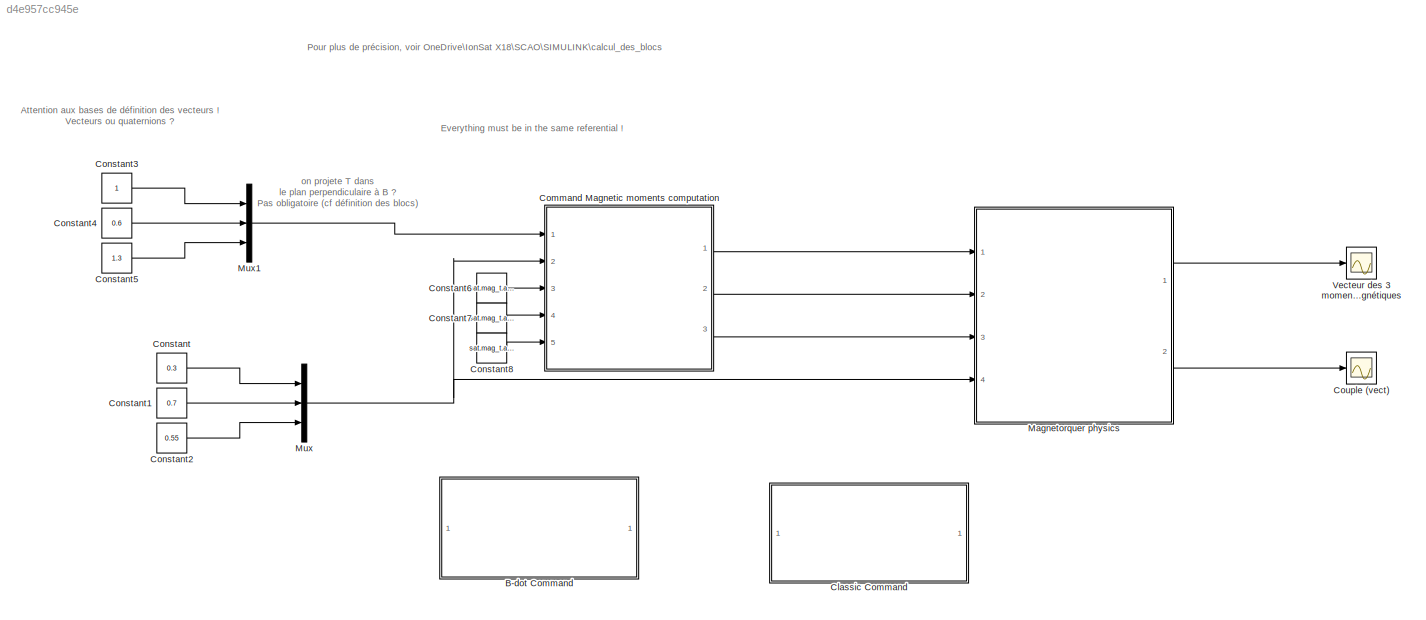
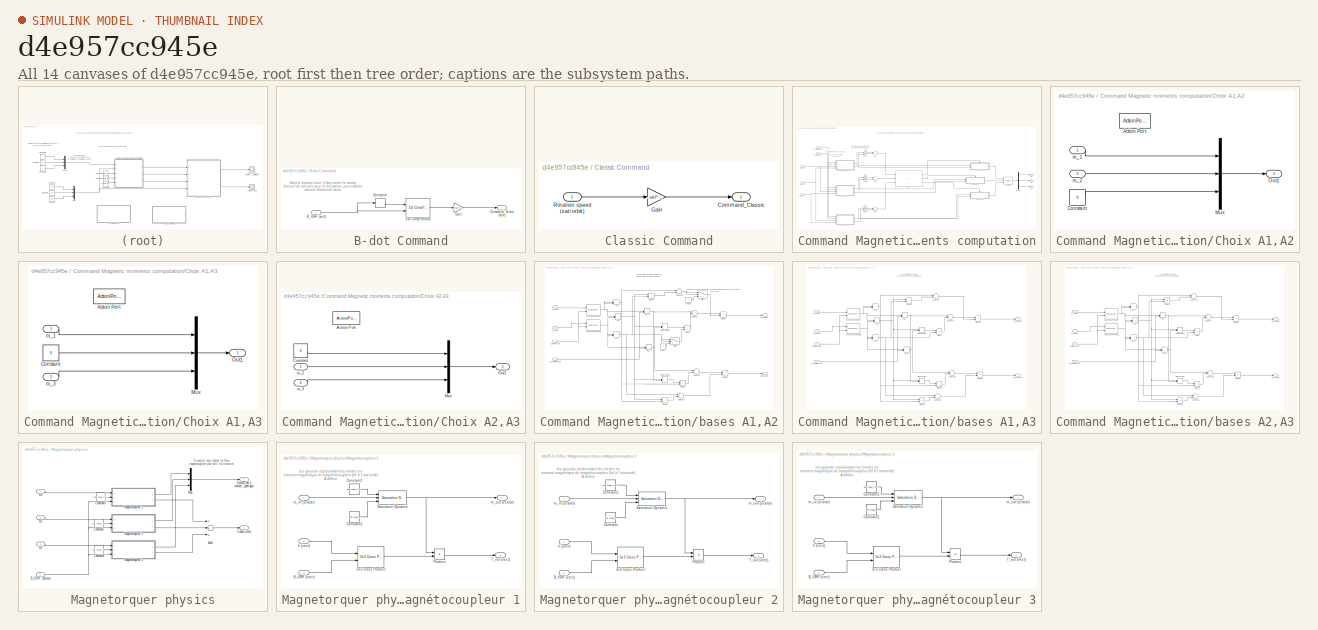
[diagram: thumbnail index - all 14 canvases of the model, root first then tree order]
MODEL slx_d4e957cc945e
KIND model
CONFIG AbsTol = auto
CONFIG EnableMultiTasking = off
CONFIG FixedStep = auto
CONFIG MaxStep = auto
CONFIG MinStep = auto
CONFIG RelTol = 1e-3
CONFIG SampleTimeConstraint = Unconstrained
CONFIG Solver = ode5
CONFIG SolverName = ode5
CONFIG StartTime = 0.0
CONFIG StopTime = 10.0
BLOCK [SubSystem] B-dot Command
  Ports = [1, 1]
  RequestExecContextInheritance = off
BLOCK [Reference] B-dot Command/3x3 Cross Product  REF=sharedutil/3x3 Cross Product
  Ports = [2, 1]
  SourceBlock = sharedutil/3x3 Cross Product
  SourceProductBaseCode = AE
  SourceProductName = Aerospace Blockset
  SourceType = CrossProduct
BLOCK [Inport] B-dot Command/B_IGRF (vect)
  IconDisplay = Port number
BLOCK [Outport] B-dot Command/Command_B-dot (vect)
  IconDisplay = Port number
BLOCK [Derivative] B-dot Command/Derivative
BLOCK [Gain] B-dot Command/Gain
  Gain = - sat.PID.k_mag_bdot
  OutDataTypeStr = Inherit: Inherit via internal rule
  ParamDataTypeStr = Inherit: Inherit via internal rule
  SaturateOnIntegerOverflow = off
BLOCK [SubSystem] Classic Command
  Ports = [1, 1]
  RequestExecContextInheritance = off
BLOCK [Outport] Classic Command/Command_Classic
  IconDisplay = Port number
BLOCK [Gain] Classic Command/Gain
  Gain = - sat.PID.k_mag_classic
  OutDataTypeStr = Inherit: Inherit via internal rule
  ParamDataTypeStr = Inherit: Inherit via internal rule
  SaturateOnIntegerOverflow = off
BLOCK [Inport] Classic Command/Rotation speed (sat//orbit)
  IconDisplay = Port number
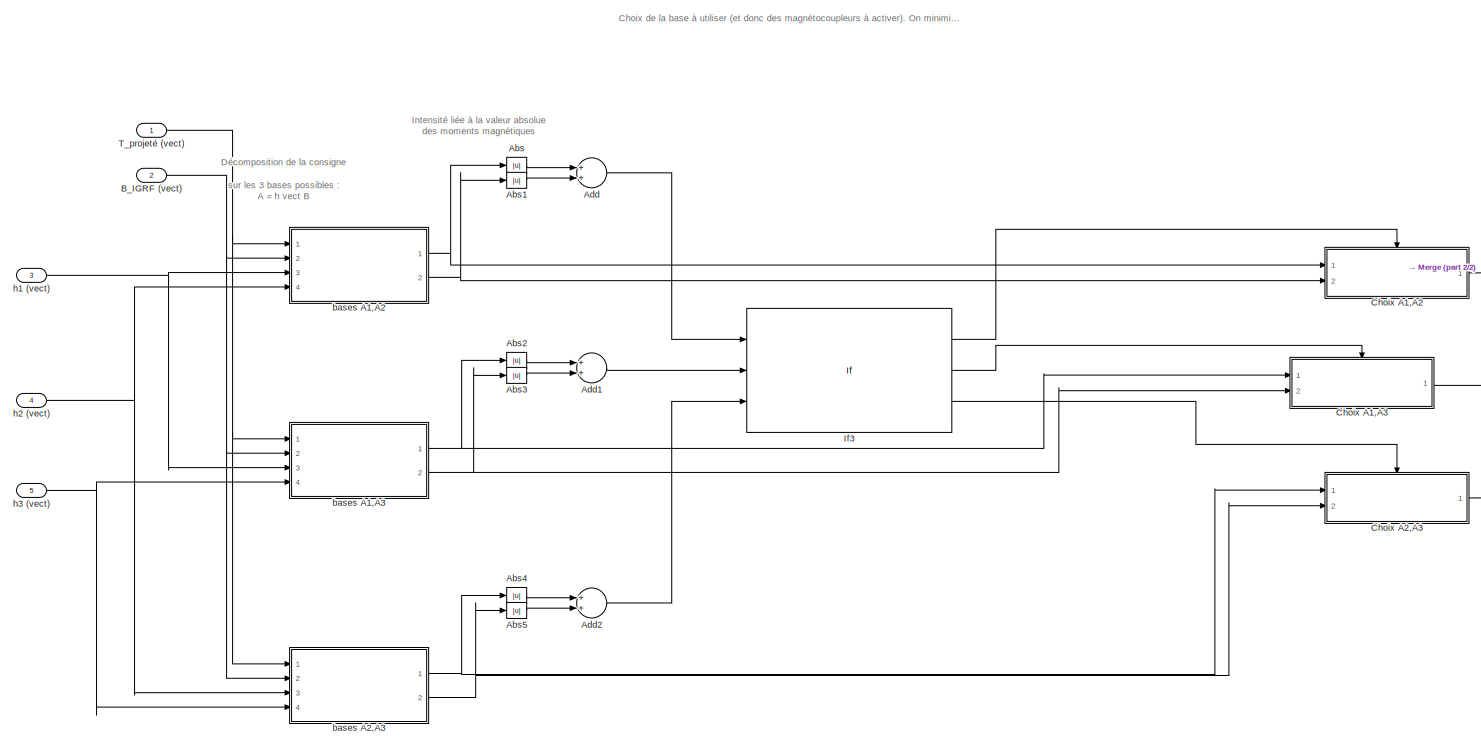
[diagram: Command Magnetic moments computation - part 1/2, most of the canvas]
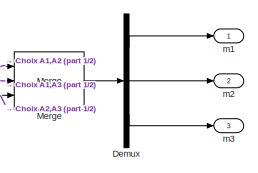
[diagram: Command Magnetic moments computation - part 2/2, middle right region]
BLOCK [SubSystem] Command Magnetic moments computation
  Ports = [5, 3]
  RequestExecContextInheritance = off
BLOCK [Abs] Command Magnetic moments computation/Abs
  SaturateOnIntegerOverflow = off
BLOCK [Abs] Command Magnetic moments computation/Abs1
  SaturateOnIntegerOverflow = off
BLOCK [Abs] Command Magnetic moments computation/Abs2
  SaturateOnIntegerOverflow = off
BLOCK [Abs] Command Magnetic moments computation/Abs3
  SaturateOnIntegerOverflow = off
BLOCK [Abs] Command Magnetic moments computation/Abs4
  SaturateOnIntegerOverflow = off
BLOCK [Abs] Command Magnetic moments computation/Abs5
  SaturateOnIntegerOverflow = off
BLOCK [Sum] Command Magnetic moments computation/Add
  InputSameDT = off
  OutDataTypeStr = Inherit: Inherit via internal rule
  Ports = [2, 1]
  SaturateOnIntegerOverflow = off
BLOCK [Sum] Command Magnetic moments computation/Add1
  InputSameDT = off
  OutDataTypeStr = Inherit: Inherit via internal rule
  Ports = [2, 1]
  SaturateOnIntegerOverflow = off
BLOCK [Sum] Command Magnetic moments computation/Add2
  InputSameDT = off
  OutDataTypeStr = Inherit: Inherit via internal rule
  Ports = [2, 1]
  SaturateOnIntegerOverflow = off
BLOCK [Inport] Command Magnetic moments computation/B_IGRF (vect)
  IconDisplay = Port number
  Port = 2
BLOCK [SubSystem] Command Magnetic moments computation/Choix A1,A2
  Ports = [2, 1, 0, 0, 0, 0, 0, 1]
  RequestExecContextInheritance = off
  TreatAsAtomicUnit = on
BLOCK [ActionPort] Command Magnetic moments computation/Choix A1,A2/Action Port
  ActionPortLabel = if(u1 <= u2 & u1 <= u3)
BLOCK [Constant] Command Magnetic moments computation/Choix A1,A2/Constant
  Value = 0
BLOCK [Mux] Command Magnetic moments computation/Choix A1,A2/Mux
  DisplayOption = bar
  Inputs = 3
  Ports = [3, 1]
BLOCK [Outport] Command Magnetic moments computation/Choix A1,A2/Out1
  IconDisplay = Port number
BLOCK [Inport] Command Magnetic moments computation/Choix A1,A2/m_1
  IconDisplay = Port number
BLOCK [Inport] Command Magnetic moments computation/Choix A1,A2/m_2
  IconDisplay = Port number
  Port = 2
BLOCK [SubSystem] Command Magnetic moments computation/Choix A1,A3
  Ports = [2, 1, 0, 0, 0, 0, 0, 1]
  RequestExecContextInheritance = off
  TreatAsAtomicUnit = on
BLOCK [ActionPort] Command Magnetic moments computation/Choix A1,A3/Action Port
  ActionPortLabel = elseif(u2 < u1 & u2 <= u3)
BLOCK [Constant] Command Magnetic moments computation/Choix A1,A3/Constant
  Value = 0
BLOCK [Mux] Command Magnetic moments computation/Choix A1,A3/Mux
  DisplayOption = bar
  Inputs = 3
  Ports = [3, 1]
BLOCK [Outport] Command Magnetic moments computation/Choix A1,A3/Out1
  IconDisplay = Port number
BLOCK [Inport] Command Magnetic moments computation/Choix A1,A3/m_1
  IconDisplay = Port number
BLOCK [Inport] Command Magnetic moments computation/Choix A1,A3/m_3
  IconDisplay = Port number
  Port = 2
BLOCK [SubSystem] Command Magnetic moments computation/Choix A2,A3
  Ports = [2, 1, 0, 0, 0, 0, 0, 1]
  RequestExecContextInheritance = off
  TreatAsAtomicUnit = on
BLOCK [ActionPort] Command Magnetic moments computation/Choix A2,A3/Action Port
  ActionPortLabel = else
BLOCK [Constant] Command Magnetic moments computation/Choix A2,A3/Constant
  Value = 0
BLOCK [Mux] Command Magnetic moments computation/Choix A2,A3/Mux
  DisplayOption = bar
  Inputs = 3
  Ports = [3, 1]
BLOCK [Outport] Command Magnetic moments computation/Choix A2,A3/Out1
  IconDisplay = Port number
BLOCK [Inport] Command Magnetic moments computation/Choix A2,A3/m_2
  IconDisplay = Port number
BLOCK [Inport] Command Magnetic moments computation/Choix A2,A3/m_3
  IconDisplay = Port number
  Port = 2
BLOCK [Demux] Command Magnetic moments computation/Demux
  DisplayOption = bar
  Outputs = 3
  Ports = [1, 3]
BLOCK [If] Command Magnetic moments computation/If3
  ElseIfExpressions = u2 < u1 & u2 <= u3
  IfExpression = u1 <= u2 & u1 <= u3
  NumInputs = 3
  Ports = [3, 3]
BLOCK [Merge] Command Magnetic moments computation/Merge
  Inputs = 3
  Ports = [3, 1]
BLOCK [Inport] Command Magnetic moments computation/T_projeté (vect)
  IconDisplay = Port number
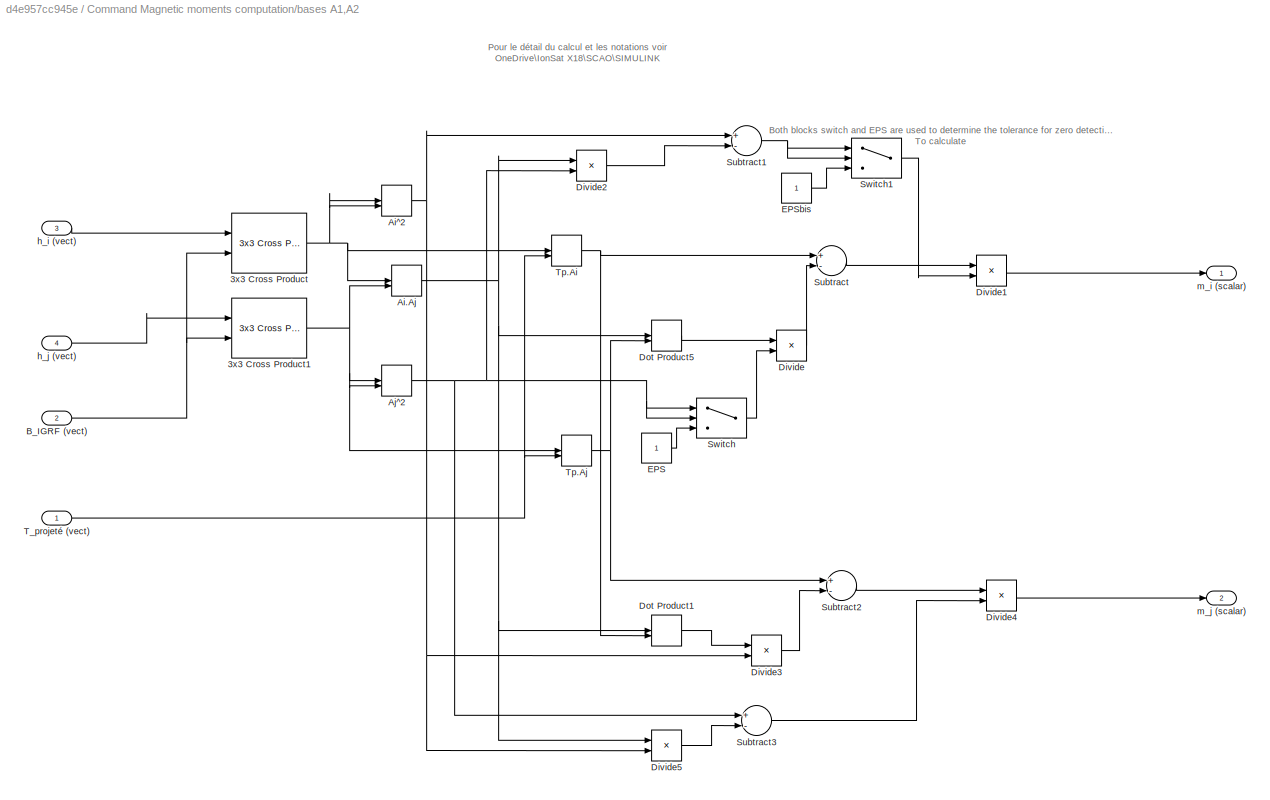
BLOCK [SubSystem] Command Magnetic moments computation/bases A1,A2
  Ports = [4, 2]
  RequestExecContextInheritance = off
BLOCK [Reference] Command Magnetic moments computation/bases A1,A2/3x3 Cross Product  REF=sharedutil/3x3 Cross Product
  Ports = [2, 1]
  SourceBlock = sharedutil/3x3 Cross Product
  SourceProductBaseCode = AE
  SourceProductName = Aerospace Blockset
  SourceType = CrossProduct
BLOCK [Reference] Command Magnetic moments computation/bases A1,A2/3x3 Cross Product1  REF=sharedutil/3x3 Cross Product
  Ports = [2, 1]
  SourceBlock = sharedutil/3x3 Cross Product
  SourceProductBaseCode = AE
  SourceProductName = Aerospace Blockset
  SourceType = CrossProduct
BLOCK [DotProduct] Command Magnetic moments computation/bases A1,A2/Ai.Aj
  OutDataTypeStr = Inherit: Inherit via internal rule
BLOCK [DotProduct] Command Magnetic moments computation/bases A1,A2/Ai^2
  OutDataTypeStr = Inherit: Inherit via internal rule
BLOCK [DotProduct] Command Magnetic moments computation/bases A1,A2/Aj^2
  OutDataTypeStr = Inherit: Inherit via internal rule
BLOCK [Inport] Command Magnetic moments computation/bases A1,A2/B_IGRF (vect)
  IconDisplay = Port number
  Port = 2
BLOCK [Product] Command Magnetic moments computation/bases A1,A2/Divide
  InputSameDT = off
  Inputs = */
  OutDataTypeStr = Inherit: Inherit via internal rule
  Ports = [2, 1]
  RndMeth = Floor
  SaturateOnIntegerOverflow = off
BLOCK [Product] Command Magnetic moments computation/bases A1,A2/Divide1
  InputSameDT = off
  Inputs = */
  OutDataTypeStr = Inherit: Inherit via internal rule
  Ports = [2, 1]
  RndMeth = Floor
  SaturateOnIntegerOverflow = off
BLOCK [Product] Command Magnetic moments computation/bases A1,A2/Divide2
  InputSameDT = off
  Inputs = */
  OutDataTypeStr = Inherit: Inherit via internal rule
  Ports = [2, 1]
  RndMeth = Floor
  SaturateOnIntegerOverflow = off
BLOCK [Product] Command Magnetic moments computation/bases A1,A2/Divide3
  InputSameDT = off
  Inputs = */
  OutDataTypeStr = Inherit: Inherit via internal rule
  Ports = [2, 1]
  RndMeth = Floor
  SaturateOnIntegerOverflow = off
BLOCK [Product] Command Magnetic moments computation/bases A1,A2/Divide4
  InputSameDT = off
  Inputs = */
  OutDataTypeStr = Inherit: Inherit via internal rule
  Ports = [2, 1]
  RndMeth = Floor
  SaturateOnIntegerOverflow = off
BLOCK [Product] Command Magnetic moments computation/bases A1,A2/Divide5
  InputSameDT = off
  Inputs = */
  OutDataTypeStr = Inherit: Inherit via internal rule
  Ports = [2, 1]
  RndMeth = Floor
  SaturateOnIntegerOverflow = off
BLOCK [DotProduct] Command Magnetic moments computation/bases A1,A2/Dot Product1
  OutDataTypeStr = Inherit: Inherit via internal rule
BLOCK [DotProduct] Command Magnetic moments computation/bases A1,A2/Dot Product5
  OutDataTypeStr = Inherit: Inherit via internal rule
BLOCK [Constant] Command Magnetic moments computation/bases A1,A2/EPS
BLOCK [Constant] Command Magnetic moments computation/bases A1,A2/EPSbis
BLOCK [Sum] Command Magnetic moments computation/bases A1,A2/Subtract
  InputSameDT = off
  Inputs = +-
  OutDataTypeStr = Inherit: Inherit via internal rule
  Ports = [2, 1]
  SaturateOnIntegerOverflow = off
BLOCK [Sum] Command Magnetic moments computation/bases A1,A2/Subtract1
  InputSameDT = off
  Inputs = +-
  OutDataTypeStr = Inherit: Inherit via internal rule
  Ports = [2, 1]
  SaturateOnIntegerOverflow = off
BLOCK [Sum] Command Magnetic moments computation/bases A1,A2/Subtract2
  InputSameDT = off
  Inputs = +-
  OutDataTypeStr = Inherit: Inherit via internal rule
  Ports = [2, 1]
  SaturateOnIntegerOverflow = off
BLOCK [Sum] Command Magnetic moments computation/bases A1,A2/Subtract3
  InputSameDT = off
  Inputs = +-
  OutDataTypeStr = Inherit: Inherit via internal rule
  Ports = [2, 1]
  SaturateOnIntegerOverflow = off
BLOCK [Switch] Command Magnetic moments computation/bases A1,A2/Switch
  Criteria = u2 ~= 0
  InputSameDT = off
  SaturateOnIntegerOverflow = off
BLOCK [Switch] Command Magnetic moments computation/bases A1,A2/Switch1
  Criteria = u2 ~= 0
  InputSameDT = off
  SaturateOnIntegerOverflow = off
BLOCK [Inport] Command Magnetic moments computation/bases A1,A2/T_projeté (vect)
  IconDisplay = Port number
BLOCK [DotProduct] Command Magnetic moments computation/bases A1,A2/Tp.Ai
  OutDataTypeStr = Inherit: Inherit via internal rule
BLOCK [DotProduct] Command Magnetic moments computation/bases A1,A2/Tp.Aj
  OutDataTypeStr = Inherit: Inherit via internal rule
BLOCK [Inport] Command Magnetic moments computation/bases A1,A2/h_i (vect)
  IconDisplay = Port number
  Port = 3
BLOCK [Inport] Command Magnetic moments computation/bases A1,A2/h_j (vect)
  IconDisplay = Port number
  Port = 4
BLOCK [Outport] Command Magnetic moments computation/bases A1,A2/m_i (scalar)
  IconDisplay = Port number
BLOCK [Outport] Command Magnetic moments computation/bases A1,A2/m_j (scalar)
  IconDisplay = Port number
  Port = 2
BLOCK [SubSystem] Command Magnetic moments computation/bases A1,A3
  Ports = [4, 2]
  RequestExecContextInheritance = off
BLOCK [Reference] Command Magnetic moments computation/bases A1,A3/3x3 Cross Product  REF=sharedutil/3x3 Cross Product
  Ports = [2, 1]
  SourceBlock = sharedutil/3x3 Cross Product
  SourceProductBaseCode = AE
  SourceProductName = Aerospace Blockset
  SourceType = CrossProduct
BLOCK [Reference] Command Magnetic moments computation/bases A1,A3/3x3 Cross Product1  REF=sharedutil/3x3 Cross Product
  Ports = [2, 1]
  SourceBlock = sharedutil/3x3 Cross Product
  SourceProductBaseCode = AE
  SourceProductName = Aerospace Blockset
  SourceType = CrossProduct
BLOCK [DotProduct] Command Magnetic moments computation/bases A1,A3/Ai.Aj
  OutDataTypeStr = Inherit: Inherit via internal rule
BLOCK [DotProduct] Command Magnetic moments computation/bases A1,A3/Ai^2
  OutDataTypeStr = Inherit: Inherit via internal rule
BLOCK [DotProduct] Command Magnetic moments computation/bases A1,A3/Aj^2
  OutDataTypeStr = Inherit: Inherit via internal rule
BLOCK [Inport] Command Magnetic moments computation/bases A1,A3/B_IGRF (vect)
  IconDisplay = Port number
  Port = 2
BLOCK [Product] Command Magnetic moments computation/bases A1,A3/Divide
  InputSameDT = off
  Inputs = */
  OutDataTypeStr = Inherit: Inherit via internal rule
  Ports = [2, 1]
  RndMeth = Floor
  SaturateOnIntegerOverflow = off
BLOCK [Product] Command Magnetic moments computation/bases A1,A3/Divide1
  InputSameDT = off
  Inputs = */
  OutDataTypeStr = Inherit: Inherit via internal rule
  Ports = [2, 1]
  RndMeth = Floor
  SaturateOnIntegerOverflow = off
BLOCK [Product] Command Magnetic moments computation/bases A1,A3/Divide2
  InputSameDT = off
  Inputs = */
  OutDataTypeStr = Inherit: Inherit via internal rule
  Ports = [2, 1]
  RndMeth = Floor
  SaturateOnIntegerOverflow = off
BLOCK [Product] Command Magnetic moments computation/bases A1,A3/Divide3
  InputSameDT = off
  Inputs = */
  OutDataTypeStr = Inherit: Inherit via internal rule
  Ports = [2, 1]
  RndMeth = Floor
  SaturateOnIntegerOverflow = off
BLOCK [Product] Command Magnetic moments computation/bases A1,A3/Divide4
  InputSameDT = off
  Inputs = */
  OutDataTypeStr = Inherit: Inherit via internal rule
  Ports = [2, 1]
  RndMeth = Floor
  SaturateOnIntegerOverflow = off
BLOCK [Product] Command Magnetic moments computation/bases A1,A3/Divide5
  InputSameDT = off
  Inputs = */
  OutDataTypeStr = Inherit: Inherit via internal rule
  Ports = [2, 1]
  RndMeth = Floor
  SaturateOnIntegerOverflow = off
BLOCK [DotProduct] Command Magnetic moments computation/bases A1,A3/Dot Product1
  OutDataTypeStr = Inherit: Inherit via internal rule
BLOCK [DotProduct] Command Magnetic moments computation/bases A1,A3/Dot Product5
  OutDataTypeStr = Inherit: Inherit via internal rule
BLOCK [Sum] Command Magnetic moments computation/bases A1,A3/Subtract
  InputSameDT = off
  Inputs = +-
  OutDataTypeStr = Inherit: Inherit via internal rule
  Ports = [2, 1]
  SaturateOnIntegerOverflow = off
BLOCK [Sum] Command Magnetic moments computation/bases A1,A3/Subtract1
  InputSameDT = off
  Inputs = +-
  OutDataTypeStr = Inherit: Inherit via internal rule
  Ports = [2, 1]
  SaturateOnIntegerOverflow = off
BLOCK [Sum] Command Magnetic moments computation/bases A1,A3/Subtract2
  InputSameDT = off
  Inputs = +-
  OutDataTypeStr = Inherit: Inherit via internal rule
  Ports = [2, 1]
  SaturateOnIntegerOverflow = off
BLOCK [Sum] Command Magnetic moments computation/bases A1,A3/Subtract3
  InputSameDT = off
  Inputs = +-
  OutDataTypeStr = Inherit: Inherit via internal rule
  Ports = [2, 1]
  SaturateOnIntegerOverflow = off
BLOCK [Inport] Command Magnetic moments computation/bases A1,A3/T_projeté (vect)
  IconDisplay = Port number
BLOCK [DotProduct] Command Magnetic moments computation/bases A1,A3/Tp.Ai
  OutDataTypeStr = Inherit: Inherit via internal rule
BLOCK [DotProduct] Command Magnetic moments computation/bases A1,A3/Tp.Aj
  OutDataTypeStr = Inherit: Inherit via internal rule
BLOCK [Inport] Command Magnetic moments computation/bases A1,A3/h_i (vect)
  IconDisplay = Port number
  Port = 3
BLOCK [Inport] Command Magnetic moments computation/bases A1,A3/h_j (vect)
  IconDisplay = Port number
  Port = 4
BLOCK [Outport] Command Magnetic moments computation/bases A1,A3/m_i (scalar)
  IconDisplay = Port number
BLOCK [Outport] Command Magnetic moments computation/bases A1,A3/m_j (scalar)
  IconDisplay = Port number
  Port = 2
BLOCK [SubSystem] Command Magnetic moments computation/bases A2,A3
  Ports = [4, 2]
  RequestExecContextInheritance = off
BLOCK [Reference] Command Magnetic moments computation/bases A2,A3/3x3 Cross Product  REF=sharedutil/3x3 Cross Product
  Ports = [2, 1]
  SourceBlock = sharedutil/3x3 Cross Product
  SourceProductBaseCode = AE
  SourceProductName = Aerospace Blockset
  SourceType = CrossProduct
BLOCK [Reference] Command Magnetic moments computation/bases A2,A3/3x3 Cross Product1  REF=sharedutil/3x3 Cross Product
  Ports = [2, 1]
  SourceBlock = sharedutil/3x3 Cross Product
  SourceProductBaseCode = AE
  SourceProductName = Aerospace Blockset
  SourceType = CrossProduct
BLOCK [DotProduct] Command Magnetic moments computation/bases A2,A3/Ai.Aj
  OutDataTypeStr = Inherit: Inherit via internal rule
BLOCK [DotProduct] Command Magnetic moments computation/bases A2,A3/Ai^2
  OutDataTypeStr = Inherit: Inherit via internal rule
BLOCK [DotProduct] Command Magnetic moments computation/bases A2,A3/Aj^2
  OutDataTypeStr = Inherit: Inherit via internal rule
BLOCK [Inport] Command Magnetic moments computation/bases A2,A3/B_IGRF (vect)
  IconDisplay = Port number
  Port = 2
BLOCK [Product] Command Magnetic moments computation/bases A2,A3/Divide
  InputSameDT = off
  Inputs = */
  OutDataTypeStr = Inherit: Inherit via internal rule
  Ports = [2, 1]
  RndMeth = Floor
  SaturateOnIntegerOverflow = off
BLOCK [Product] Command Magnetic moments computation/bases A2,A3/Divide1
  InputSameDT = off
  Inputs = */
  OutDataTypeStr = Inherit: Inherit via internal rule
  Ports = [2, 1]
  RndMeth = Floor
  SaturateOnIntegerOverflow = off
BLOCK [Product] Command Magnetic moments computation/bases A2,A3/Divide2
  InputSameDT = off
  Inputs = */
  OutDataTypeStr = Inherit: Inherit via internal rule
  Ports = [2, 1]
  RndMeth = Floor
  SaturateOnIntegerOverflow = off
BLOCK [Product] Command Magnetic moments computation/bases A2,A3/Divide3
  InputSameDT = off
  Inputs = */
  OutDataTypeStr = Inherit: Inherit via internal rule
  Ports = [2, 1]
  RndMeth = Floor
  SaturateOnIntegerOverflow = off
BLOCK [Product] Command Magnetic moments computation/bases A2,A3/Divide4
  InputSameDT = off
  Inputs = */
  OutDataTypeStr = Inherit: Inherit via internal rule
  Ports = [2, 1]
  RndMeth = Floor
  SaturateOnIntegerOverflow = off
BLOCK [Product] Command Magnetic moments computation/bases A2,A3/Divide5
  InputSameDT = off
  Inputs = */
  OutDataTypeStr = Inherit: Inherit via internal rule
  Ports = [2, 1]
  RndMeth = Floor
  SaturateOnIntegerOverflow = off
BLOCK [DotProduct] Command Magnetic moments computation/bases A2,A3/Dot Product1
  OutDataTypeStr = Inherit: Inherit via internal rule
BLOCK [DotProduct] Command Magnetic moments computation/bases A2,A3/Dot Product5
  OutDataTypeStr = Inherit: Inherit via internal rule
BLOCK [Sum] Command Magnetic moments computation/bases A2,A3/Subtract
  InputSameDT = off
  Inputs = +-
  OutDataTypeStr = Inherit: Inherit via internal rule
  Ports = [2, 1]
  SaturateOnIntegerOverflow = off
BLOCK [Sum] Command Magnetic moments computation/bases A2,A3/Subtract1
  InputSameDT = off
  Inputs = +-
  OutDataTypeStr = Inherit: Inherit via internal rule
  Ports = [2, 1]
  SaturateOnIntegerOverflow = off
BLOCK [Sum] Command Magnetic moments computation/bases A2,A3/Subtract2
  InputSameDT = off
  Inputs = +-
  OutDataTypeStr = Inherit: Inherit via internal rule
  Ports = [2, 1]
  SaturateOnIntegerOverflow = off
BLOCK [Sum] Command Magnetic moments computation/bases A2,A3/Subtract3
  InputSameDT = off
  Inputs = +-
  OutDataTypeStr = Inherit: Inherit via internal rule
  Ports = [2, 1]
  SaturateOnIntegerOverflow = off
BLOCK [Inport] Command Magnetic moments computation/bases A2,A3/T_projeté (vect)
  IconDisplay = Port number
BLOCK [DotProduct] Command Magnetic moments computation/bases A2,A3/Tp.Ai
  OutDataTypeStr = Inherit: Inherit via internal rule
BLOCK [DotProduct] Command Magnetic moments computation/bases A2,A3/Tp.Aj
  OutDataTypeStr = Inherit: Inherit via internal rule
BLOCK [Inport] Command Magnetic moments computation/bases A2,A3/h_i (vect)
  IconDisplay = Port number
  Port = 3
BLOCK [Inport] Command Magnetic moments computation/bases A2,A3/h_j (vect)
  IconDisplay = Port number
  Port = 4
BLOCK [Outport] Command Magnetic moments computation/bases A2,A3/m_i (scalar)
  IconDisplay = Port number
BLOCK [Outport] Command Magnetic moments computation/bases A2,A3/m_j (scalar)
  IconDisplay = Port number
  Port = 2
BLOCK [Inport] Command Magnetic moments computation/h1 (vect)
  IconDisplay = Port number
  Port = 3
BLOCK [Inport] Command Magnetic moments computation/h2 (vect)
  IconDisplay = Port number
  Port = 4
BLOCK [Inport] Command Magnetic moments computation/h3 (vect)
  IconDisplay = Port number
  Port = 5
BLOCK [Outport] Command Magnetic moments computation/m1
  IconDisplay = Port number
BLOCK [Outport] Command Magnetic moments computation/m2
  IconDisplay = Port number
  Port = 2
BLOCK [Outport] Command Magnetic moments computation/m3
  IconDisplay = Port number
  Port = 3
BLOCK [Constant] Constant
  Value = 0.3
BLOCK [Constant] Constant1
  Value = 0.7
BLOCK [Constant] Constant2
  Value = 0.55
BLOCK [Constant] Constant3
BLOCK [Constant] Constant4
  Value = 0.6
BLOCK [Constant] Constant5
  Value = 1.3
BLOCK [Constant] Constant6
  Value = sat.mag_t.axe1
BLOCK [Constant] Constant7
  Value = sat.mag_t.axe2
BLOCK [Constant] Constant8
  Value = sat.mag_t.axe3
BLOCK [Scope] Couple (vect)
  Floating = off
  NumInputPorts = 1
  Ports = [1]
  ScopeSpecificationString = Simulink.scopes.TimeScopeBlockCfg('CurrentConfiguration', extmgr.ConfigurationSet(extmgr.Configuration('Core','General UI',true),extmgr.Configuration('Core','Source UI',true),extmgr.Configuration('Sources','WiredSimulink',true,'DataLoggingVariableName','ScopeData1'),extmgr.Configuration('Visuals','Time Domain',true,'SerializedDisplays',{struct('MinYLimReal','-0.0868','MaxYLimReal','0.08342','YLabe...<+1460ch>
BLOCK [SubSystem] Magnetorquer physics
  Ports = [4, 2]
  RequestExecContextInheritance = off
BLOCK [Sum] Magnetorquer physics/Add
  InputSameDT = off
  Inputs = +++
  OutDataTypeStr = Inherit: Inherit via internal rule
  Ports = [3, 1]
  SaturateOnIntegerOverflow = off
BLOCK [Inport] Magnetorquer physics/B_IGRF (vecteur)
  IconDisplay = Port number
  Port = 4
BLOCK [Constant] Magnetorquer physics/Constant6
  Value = sat.mag_t.axe1
BLOCK [Constant] Magnetorquer physics/Constant7
  Value = sat.mag_t.axe2
BLOCK [Constant] Magnetorquer physics/Constant8
  Value = sat.mag_t.axe3
BLOCK [Outport] Magnetorquer physics/Couple (vect)
  IconDisplay = Port number
  Port = 2
BLOCK [SubSystem] Magnetorquer physics/Magnétocoupleur 1
  Ports = [3, 2]
  RequestExecContextInheritance = off
BLOCK [Reference] Magnetorquer physics/Magnétocoupleur 1/3x3 Cross Product  REF=sharedutil/3x3 Cross Product
  Ports = [2, 1]
  SourceBlock = sharedutil/3x3 Cross Product
  SourceProductBaseCode = AE
  SourceProductName = Aerospace Blockset
  SourceType = CrossProduct
BLOCK [Inport] Magnetorquer physics/Magnétocoupleur 1/B_IGRF (vect)
  IconDisplay = Port number
  Port = 3
BLOCK [Constant] Magnetorquer physics/Magnétocoupleur 1/Constant1
  Value = sat.mag_t.max_mm1
BLOCK [Constant] Magnetorquer physics/Magnétocoupleur 1/Constant2
  Value = - sat.mag_t.max_mm1
BLOCK [Product] Magnetorquer physics/Magnétocoupleur 1/Product
  InputSameDT = off
  OutDataTypeStr = Inherit: Inherit via internal rule
  Ports = [2, 1]
  RndMeth = Floor
  SaturateOnIntegerOverflow = off
BLOCK [Reference] Magnetorquer physics/Magnétocoupleur 1/Saturation Dynamic  REF=simulink/Discontinuities/Saturation
Dynamic
  Ports = [3, 1]
  SourceBlock = simulink/Discontinuities/Saturation\nDynamic
  SourceProductBaseCode = SL
  SourceProductName = Simulink
  SourceType = Saturation Dynamic
BLOCK [Outport] Magnetorquer physics/Magnétocoupleur 1/T_out (vect)
  IconDisplay = Port number
  Port = 2
BLOCK [Inport] Magnetorquer physics/Magnétocoupleur 1/h (vect)
  IconDisplay = Port number
  Port = 2
BLOCK [Inport] Magnetorquer physics/Magnétocoupleur 1/m_in (scalar)
  IconDisplay = Port number
BLOCK [Outport] Magnetorquer physics/Magnétocoupleur 1/m_out (scalar)
  IconDisplay = Port number
BLOCK [SubSystem] Magnetorquer physics/Magnétocoupleur 2
  Ports = [3, 2]
  RequestExecContextInheritance = off
BLOCK [Reference] Magnetorquer physics/Magnétocoupleur 2/3x3 Cross Product  REF=sharedutil/3x3 Cross Product
  Ports = [2, 1]
  SourceBlock = sharedutil/3x3 Cross Product
  SourceProductBaseCode = AE
  SourceProductName = Aerospace Blockset
  SourceType = CrossProduct
BLOCK [Inport] Magnetorquer physics/Magnétocoupleur 2/B_IGRF (vect)
  IconDisplay = Port number
  Port = 3
BLOCK [Constant] Magnetorquer physics/Magnétocoupleur 2/Constant
  Value = - sat.mag_t.max_mm2
BLOCK [Constant] Magnetorquer physics/Magnétocoupleur 2/Constant1
  Value = sat.mag_t.max_mm2
BLOCK [Product] Magnetorquer physics/Magnétocoupleur 2/Product
  InputSameDT = off
  OutDataTypeStr = Inherit: Inherit via internal rule
  Ports = [2, 1]
  RndMeth = Floor
  SaturateOnIntegerOverflow = off
BLOCK [Reference] Magnetorquer physics/Magnétocoupleur 2/Saturation Dynamic  REF=simulink/Discontinuities/Saturation
Dynamic
  Ports = [3, 1]
  SourceBlock = simulink/Discontinuities/Saturation\nDynamic
  SourceProductBaseCode = SL
  SourceProductName = Simulink
  SourceType = Saturation Dynamic
BLOCK [Outport] Magnetorquer physics/Magnétocoupleur 2/T_out (vect)
  IconDisplay = Port number
  Port = 2
BLOCK [Inport] Magnetorquer physics/Magnétocoupleur 2/h (vect)
  IconDisplay = Port number
  Port = 2
BLOCK [Inport] Magnetorquer physics/Magnétocoupleur 2/m_in (scalar)
  IconDisplay = Port number
BLOCK [Outport] Magnetorquer physics/Magnétocoupleur 2/m_out (scalar)
  IconDisplay = Port number
BLOCK [SubSystem] Magnetorquer physics/Magnétocoupleur 3
  Ports = [3, 2]
  RequestExecContextInheritance = off
BLOCK [Reference] Magnetorquer physics/Magnétocoupleur 3/3x3 Cross Product  REF=sharedutil/3x3 Cross Product
  Ports = [2, 1]
  SourceBlock = sharedutil/3x3 Cross Product
  SourceProductBaseCode = AE
  SourceProductName = Aerospace Blockset
  SourceType = CrossProduct
BLOCK [Inport] Magnetorquer physics/Magnétocoupleur 3/B_IGRF (vect)
  IconDisplay = Port number
  Port = 3
BLOCK [Constant] Magnetorquer physics/Magnétocoupleur 3/Constant1
  Value = sat.mag_t.max_mm3
BLOCK [Constant] Magnetorquer physics/Magnétocoupleur 3/Constant2
  Value = - sat.mag_t.max_mm3
BLOCK [Product] Magnetorquer physics/Magnétocoupleur 3/Product
  InputSameDT = off
  OutDataTypeStr = Inherit: Inherit via internal rule
  Ports = [2, 1]
  RndMeth = Floor
  SaturateOnIntegerOverflow = off
BLOCK [Reference] Magnetorquer physics/Magnétocoupleur 3/Saturation Dynamic  REF=simulink/Discontinuities/Saturation
Dynamic
  Ports = [3, 1]
  SourceBlock = simulink/Discontinuities/Saturation\nDynamic
  SourceProductBaseCode = SL
  SourceProductName = Simulink
  SourceType = Saturation Dynamic
BLOCK [Outport] Magnetorquer physics/Magnétocoupleur 3/T_out (vect)
  IconDisplay = Port number
  Port = 2
BLOCK [Inport] Magnetorquer physics/Magnétocoupleur 3/h (vect)
  IconDisplay = Port number
  Port = 2
BLOCK [Inport] Magnetorquer physics/Magnétocoupleur 3/m_in (scalar)
  IconDisplay = Port number
BLOCK [Outport] Magnetorquer physics/Magnétocoupleur 3/m_out (scalar)
  IconDisplay = Port number
BLOCK [Mux] Magnetorquer physics/Mux
  DisplayOption = bar
  Inputs = 3
  Ports = [3, 1]
BLOCK [Outport] Magnetorquer physics/Vecteur des 3 moments magnétiques
  IconDisplay = Port number
BLOCK [Inport] Magnetorquer physics/m1
  IconDisplay = Port number
BLOCK [Inport] Magnetorquer physics/m2
  IconDisplay = Port number
  Port = 2
BLOCK [Inport] Magnetorquer physics/m3
  IconDisplay = Port number
  Port = 3
BLOCK [Mux] Mux
  DisplayOption = bar
  Inputs = 3
  Ports = [3, 1]
BLOCK [Mux] Mux1
  DisplayOption = bar
  Inputs = 3
  Ports = [3, 1]
BLOCK [Scope] Vecteur des 3 moments magnétiques
  Floating = off
  NumInputPorts = 1
  Ports = [1]
  ScopeSpecificationString = Simulink.scopes.TimeScopeBlockCfg('CurrentConfiguration', extmgr.ConfigurationSet(extmgr.Configuration('Core','General UI',true),extmgr.Configuration('Core','Source UI',true),extmgr.Configuration('Sources','WiredSimulink',true),extmgr.Configuration('Visuals','Time Domain',true,'SerializedDisplays',{struct('MinYLimReal','-0.26167','MaxYLimReal','0.02907','YLabelReal','','MinYLimMag','0.00000','MaxY...<+1423ch>
ANNOTATION (root): Attention aux bases de définition des vecteurs ! Vecteurs ou quaternions ?
ANNOTATION (root): Everything must be in the same referential !
ANNOTATION (root): Pour plus de précision, voir OneDrive\IonSat X18\SCAO\SIMULINK\calcul_des_blocs
ANNOTATION (root): on projete T dans le plan perpendiculaire à B ? Pas obligatoire (cf définition des blocs)
ANNOTATION B-dot Command: Dans le bras du haut, il faut entrer le champ dans ref du vehicule pour la dérivation, puis remettre dans le référentiel voulu
ANNOTATION Command Magnetic moments computation: Choix de la base à utiliser (et donc des magnétocoupleurs à activer). On minimise en gros l'intensité globale.
ANNOTATION Command Magnetic moments computation: Décomposition de la consigne sur les 3 bases possibles : A = h vect B
ANNOTATION Command Magnetic moments computation: Intensité liée à la valeur absolue des moments magnétiques
ANNOTATION Command Magnetic moments computation/bases A1,A2: Pour le détail du calcul et les notations voir OneDrive\IonSat X18\SCAO\SIMULINK
ANNOTATION Command Magnetic moments computation/bases A1,A2: Both blocks switch and EPS are used to determine the tolerance for zero detection. To calculate
ANNOTATION Command Magnetic moments computation/bases A1,A3: Pour le détail du calcul voir OneDrive\IonSat X18\SCAO\SIMULINK
ANNOTATION Command Magnetic moments computation/bases A2,A3: Pour le détail du calcul voir OneDrive\IonSat X18\SCAO\SIMULINK
ANNOTATION Magnetorquer physics: On pourrait aussi changer les blocs magnétocoupleurs pour sortir les intensités
ANNOTATION Magnetorquer physics/Magnétocoupleur 1: les grounds représentant les limites en moment magnétique du magnétocoupleur (lié à l'intensité) A définir
ANNOTATION Magnetorquer physics/Magnétocoupleur 2: les grounds représentant les limites en moment magnétique du magnétocoupleur (lié à l'intensité) A définir
ANNOTATION Magnetorquer physics/Magnétocoupleur 3: les grounds représentant les limites en moment magnétique du magnétocoupleur (lié à l'intensité) A définir
LINE B-dot Command/3x3 Cross Product:1 -> B-dot Command/Gain:1
NET B-dot Command/B_IGRF (vect):1 -> B-dot Command/3x3 Cross Product:2, B-dot Command/Derivative:1
LINE B-dot Command/Derivative:1 -> B-dot Command/3x3 Cross Product:1
LINE B-dot Command/Gain:1 -> B-dot Command/Command_B-dot (vect):1
LINE Classic Command/Gain:1 -> Classic Command/Command_Classic:1
LINE Classic Command/Rotation speed (sat//orbit):1 -> Classic Command/Gain:1
LINE Command Magnetic moments computation/Abs1:1 -> Command Magnetic moments computation/Add:2
LINE Command Magnetic moments computation/Abs2:1 -> Command Magnetic moments computation/Add1:1
LINE Command Magnetic moments computation/Abs3:1 -> Command Magnetic moments computation/Add1:2
LINE Command Magnetic moments computation/Abs4:1 -> Command Magnetic moments computation/Add2:1
LINE Command Magnetic moments computation/Abs5:1 -> Command Magnetic moments computation/Add2:2
LINE Command Magnetic moments computation/Abs:1 -> Command Magnetic moments computation/Add:1
LINE Command Magnetic moments computation/Add1:1 -> Command Magnetic moments computation/If3:2
LINE Command Magnetic moments computation/Add2:1 -> Command Magnetic moments computation/If3:3
LINE Command Magnetic moments computation/Add:1 -> Command Magnetic moments computation/If3:1
NET Command Magnetic moments computation/B_IGRF (vect):1 -> Command Magnetic moments computation/bases A1,A2:2, Command Magnetic moments computation/bases A1,A3:2, Command Magnetic moments computation/bases A2,A3:2
LINE Command Magnetic moments computation/Choix A1,A2/Constant:1 -> Command Magnetic moments computation/Choix A1,A2/Mux:3
LINE Command Magnetic moments computation/Choix A1,A2/Mux:1 -> Command Magnetic moments computation/Choix A1,A2/Out1:1
LINE Command Magnetic moments computation/Choix A1,A2/m_1:1 -> Command Magnetic moments computation/Choix A1,A2/Mux:1
LINE Command Magnetic moments computation/Choix A1,A2/m_2:1 -> Command Magnetic moments computation/Choix A1,A2/Mux:2
LINE Command Magnetic moments computation/Choix A1,A2:1 -> Command Magnetic moments computation/Merge:1
LINE Command Magnetic moments computation/Choix A1,A3/Constant:1 -> Command Magnetic moments computation/Choix A1,A3/Mux:2
LINE Command Magnetic moments computation/Choix A1,A3/Mux:1 -> Command Magnetic moments computation/Choix A1,A3/Out1:1
LINE Command Magnetic moments computation/Choix A1,A3/m_1:1 -> Command Magnetic moments computation/Choix A1,A3/Mux:1
LINE Command Magnetic moments computation/Choix A1,A3/m_3:1 -> Command Magnetic moments computation/Choix A1,A3/Mux:3
LINE Command Magnetic moments computation/Choix A1,A3:1 -> Command Magnetic moments computation/Merge:2
LINE Command Magnetic moments computation/Choix A2,A3/Constant:1 -> Command Magnetic moments computation/Choix A2,A3/Mux:1
LINE Command Magnetic moments computation/Choix A2,A3/Mux:1 -> Command Magnetic moments computation/Choix A2,A3/Out1:1
LINE Command Magnetic moments computation/Choix A2,A3/m_2:1 -> Command Magnetic moments computation/Choix A2,A3/Mux:2
LINE Command Magnetic moments computation/Choix A2,A3/m_3:1 -> Command Magnetic moments computation/Choix A2,A3/Mux:3
LINE Command Magnetic moments computation/Choix A2,A3:1 -> Command Magnetic moments computation/Merge:3
LINE Command Magnetic moments computation/Demux:1 -> Command Magnetic moments computation/m1:1
LINE Command Magnetic moments computation/Demux:2 -> Command Magnetic moments computation/m2:1
LINE Command Magnetic moments computation/Demux:3 -> Command Magnetic moments computation/m3:1
LINE Command Magnetic moments computation/If3:1 -> Command Magnetic moments computation/Choix A1,A2:ifaction
LINE Command Magnetic moments computation/If3:2 -> Command Magnetic moments computation/Choix A1,A3:ifaction
LINE Command Magnetic moments computation/If3:3 -> Command Magnetic moments computation/Choix A2,A3:ifaction
LINE Command Magnetic moments computation/Merge:1 -> Command Magnetic moments computation/Demux:1
NET Command Magnetic moments computation/T_projeté (vect):1 -> Command Magnetic moments computation/bases A1,A2:1, Command Magnetic moments computation/bases A1,A3:1, Command Magnetic moments computation/bases A2,A3:1
NET Command Magnetic moments computation/bases A1,A2/3x3 Cross Product1:1 -> Command Magnetic moments computation/bases A1,A2/Ai.Aj:2, Command Magnetic moments computation/bases A1,A2/Aj^2:1, Command Magnetic moments computation/bases A1,A2/Aj^2:2, Command Magnetic moments computation/bases A1,A2/Tp.Aj:1
NET Command Magnetic moments computation/bases A1,A2/3x3 Cross Product:1 -> Command Magnetic moments computation/bases A1,A2/Ai.Aj:1, Command Magnetic moments computation/bases A1,A2/Ai^2:1, Command Magnetic moments computation/bases A1,A2/Ai^2:2, Command Magnetic moments computation/bases A1,A2/Tp.Ai:1
NET Command Magnetic moments computation/bases A1,A2/Ai.Aj:1 -> Command Magnetic moments computation/bases A1,A2/Divide2:1, Command Magnetic moments computation/bases A1,A2/Divide5:1, Command Magnetic moments computation/bases A1,A2/Dot Product1:1, Command Magnetic moments computation/bases A1,A2/Dot Product5:1
NET Command Magnetic moments computation/bases A1,A2/Ai^2:1 -> Command Magnetic moments computation/bases A1,A2/Divide3:2, Command Magnetic moments computation/bases A1,A2/Divide5:2, Command Magnetic moments computation/bases A1,A2/Subtract1:1
NET Command Magnetic moments computation/bases A1,A2/Aj^2:1 -> Command Magnetic moments computation/bases A1,A2/Divide2:2, Command Magnetic moments computation/bases A1,A2/Subtract3:1, Command Magnetic moments computation/bases A1,A2/Switch:1, Command Magnetic moments computation/bases A1,A2/Switch:2
NET Command Magnetic moments computation/bases A1,A2/B_IGRF (vect):1 -> Command Magnetic moments computation/bases A1,A2/3x3 Cross Product1:2, Command Magnetic moments computation/bases A1,A2/3x3 Cross Product:2
LINE Command Magnetic moments computation/bases A1,A2/Divide1:1 -> Command Magnetic moments computation/bases A1,A2/m_i (scalar):1
LINE Command Magnetic moments computation/bases A1,A2/Divide2:1 -> Command Magnetic moments computation/bases A1,A2/Subtract1:2
LINE Command Magnetic moments computation/bases A1,A2/Divide3:1 -> Command Magnetic moments computation/bases A1,A2/Subtract2:2
LINE Command Magnetic moments computation/bases A1,A2/Divide4:1 -> Command Magnetic moments computation/bases A1,A2/m_j (scalar):1
LINE Command Magnetic moments computation/bases A1,A2/Divide5:1 -> Command Magnetic moments computation/bases A1,A2/Subtract3:2
LINE Command Magnetic moments computation/bases A1,A2/Divide:1 -> Command Magnetic moments computation/bases A1,A2/Subtract:2
LINE Command Magnetic moments computation/bases A1,A2/Dot Product1:1 -> Command Magnetic moments computation/bases A1,A2/Divide3:1
LINE Command Magnetic moments computation/bases A1,A2/Dot Product5:1 -> Command Magnetic moments computation/bases A1,A2/Divide:1
LINE Command Magnetic moments computation/bases A1,A2/EPS:1 -> Command Magnetic moments computation/bases A1,A2/Switch:3
LINE Command Magnetic moments computation/bases A1,A2/EPSbis:1 -> Command Magnetic moments computation/bases A1,A2/Switch1:3
NET Command Magnetic moments computation/bases A1,A2/Subtract1:1 -> Command Magnetic moments computation/bases A1,A2/Switch1:1, Command Magnetic moments computation/bases A1,A2/Switch1:2
LINE Command Magnetic moments computation/bases A1,A2/Subtract2:1 -> Command Magnetic moments computation/bases A1,A2/Divide4:1
LINE Command Magnetic moments computation/bases A1,A2/Subtract3:1 -> Command Magnetic moments computation/bases A1,A2/Divide4:2
LINE Command Magnetic moments computation/bases A1,A2/Subtract:1 -> Command Magnetic moments computation/bases A1,A2/Divide1:1
LINE Command Magnetic moments computation/bases A1,A2/Switch1:1 -> Command Magnetic moments computation/bases A1,A2/Divide1:2
LINE Command Magnetic moments computation/bases A1,A2/Switch:1 -> Command Magnetic moments computation/bases A1,A2/Divide:2
NET Command Magnetic moments computation/bases A1,A2/T_projeté (vect):1 -> Command Magnetic moments computation/bases A1,A2/Tp.Ai:2, Command Magnetic moments computation/bases A1,A2/Tp.Aj:2
NET Command Magnetic moments computation/bases A1,A2/Tp.Ai:1 -> Command Magnetic moments computation/bases A1,A2/Dot Product1:2, Command Magnetic moments computation/bases A1,A2/Subtract:1
NET Command Magnetic moments computation/bases A1,A2/Tp.Aj:1 -> Command Magnetic moments computation/bases A1,A2/Dot Product5:2, Command Magnetic moments computation/bases A1,A2/Subtract2:1
LINE Command Magnetic moments computation/bases A1,A2/h_i (vect):1 -> Command Magnetic moments computation/bases A1,A2/3x3 Cross Product:1
LINE Command Magnetic moments computation/bases A1,A2/h_j (vect):1 -> Command Magnetic moments computation/bases A1,A2/3x3 Cross Product1:1
NET Command Magnetic moments computation/bases A1,A2:1 -> Command Magnetic moments computation/Abs:1, Command Magnetic moments computation/Choix A1,A2:1
NET Command Magnetic moments computation/bases A1,A2:2 -> Command Magnetic moments computation/Abs1:1, Command Magnetic moments computation/Choix A1,A2:2
NET Command Magnetic moments computation/bases A1,A3/3x3 Cross Product1:1 -> Command Magnetic moments computation/bases A1,A3/Ai.Aj:2, Command Magnetic moments computation/bases A1,A3/Aj^2:1, Command Magnetic moments computation/bases A1,A3/Aj^2:2, Command Magnetic moments computation/bases A1,A3/Tp.Aj:1
NET Command Magnetic moments computation/bases A1,A3/3x3 Cross Product:1 -> Command Magnetic moments computation/bases A1,A3/Ai.Aj:1, Command Magnetic moments computation/bases A1,A3/Ai^2:1, Command Magnetic moments computation/bases A1,A3/Ai^2:2, Command Magnetic moments computation/bases A1,A3/Tp.Ai:1
NET Command Magnetic moments computation/bases A1,A3/Ai.Aj:1 -> Command Magnetic moments computation/bases A1,A3/Divide2:1, Command Magnetic moments computation/bases A1,A3/Divide5:1, Command Magnetic moments computation/bases A1,A3/Dot Product1:1, Command Magnetic moments computation/bases A1,A3/Dot Product5:1
NET Command Magnetic moments computation/bases A1,A3/Ai^2:1 -> Command Magnetic moments computation/bases A1,A3/Divide3:2, Command Magnetic moments computation/bases A1,A3/Divide5:2, Command Magnetic moments computation/bases A1,A3/Subtract1:1
NET Command Magnetic moments computation/bases A1,A3/Aj^2:1 -> Command Magnetic moments computation/bases A1,A3/Divide2:2, Command Magnetic moments computation/bases A1,A3/Divide:2, Command Magnetic moments computation/bases A1,A3/Subtract3:1
NET Command Magnetic moments computation/bases A1,A3/B_IGRF (vect):1 -> Command Magnetic moments computation/bases A1,A3/3x3 Cross Product1:2, Command Magnetic moments computation/bases A1,A3/3x3 Cross Product:2
LINE Command Magnetic moments computation/bases A1,A3/Divide1:1 -> Command Magnetic moments computation/bases A1,A3/m_i (scalar):1
LINE Command Magnetic moments computation/bases A1,A3/Divide2:1 -> Command Magnetic moments computation/bases A1,A3/Subtract1:2
LINE Command Magnetic moments computation/bases A1,A3/Divide3:1 -> Command Magnetic moments computation/bases A1,A3/Subtract2:2
LINE Command Magnetic moments computation/bases A1,A3/Divide4:1 -> Command Magnetic moments computation/bases A1,A3/m_j (scalar):1
LINE Command Magnetic moments computation/bases A1,A3/Divide5:1 -> Command Magnetic moments computation/bases A1,A3/Subtract3:2
LINE Command Magnetic moments computation/bases A1,A3/Divide:1 -> Command Magnetic moments computation/bases A1,A3/Subtract:2
LINE Command Magnetic moments computation/bases A1,A3/Dot Product1:1 -> Command Magnetic moments computation/bases A1,A3/Divide3:1
LINE Command Magnetic moments computation/bases A1,A3/Dot Product5:1 -> Command Magnetic moments computation/bases A1,A3/Divide:1
LINE Command Magnetic moments computation/bases A1,A3/Subtract1:1 -> Command Magnetic moments computation/bases A1,A3/Divide1:2
LINE Command Magnetic moments computation/bases A1,A3/Subtract2:1 -> Command Magnetic moments computation/bases A1,A3/Divide4:1
LINE Command Magnetic moments computation/bases A1,A3/Subtract3:1 -> Command Magnetic moments computation/bases A1,A3/Divide4:2
LINE Command Magnetic moments computation/bases A1,A3/Subtract:1 -> Command Magnetic moments computation/bases A1,A3/Divide1:1
NET Command Magnetic moments computation/bases A1,A3/T_projeté (vect):1 -> Command Magnetic moments computation/bases A1,A3/Tp.Ai:2, Command Magnetic moments computation/bases A1,A3/Tp.Aj:2
NET Command Magnetic moments computation/bases A1,A3/Tp.Ai:1 -> Command Magnetic moments computation/bases A1,A3/Dot Product1:2, Command Magnetic moments computation/bases A1,A3/Subtract:1
NET Command Magnetic moments computation/bases A1,A3/Tp.Aj:1 -> Command Magnetic moments computation/bases A1,A3/Dot Product5:2, Command Magnetic moments computation/bases A1,A3/Subtract2:1
LINE Command Magnetic moments computation/bases A1,A3/h_i (vect):1 -> Command Magnetic moments computation/bases A1,A3/3x3 Cross Product:1
LINE Command Magnetic moments computation/bases A1,A3/h_j (vect):1 -> Command Magnetic moments computation/bases A1,A3/3x3 Cross Product1:1
NET Command Magnetic moments computation/bases A1,A3:1 -> Command Magnetic moments computation/Abs2:1, Command Magnetic moments computation/Choix A1,A3:1
NET Command Magnetic moments computation/bases A1,A3:2 -> Command Magnetic moments computation/Abs3:1, Command Magnetic moments computation/Choix A1,A3:2
NET Command Magnetic moments computation/bases A2,A3/3x3 Cross Product1:1 -> Command Magnetic moments computation/bases A2,A3/Ai.Aj:2, Command Magnetic moments computation/bases A2,A3/Aj^2:1, Command Magnetic moments computation/bases A2,A3/Aj^2:2, Command Magnetic moments computation/bases A2,A3/Tp.Aj:1
NET Command Magnetic moments computation/bases A2,A3/3x3 Cross Product:1 -> Command Magnetic moments computation/bases A2,A3/Ai.Aj:1, Command Magnetic moments computation/bases A2,A3/Ai^2:1, Command Magnetic moments computation/bases A2,A3/Ai^2:2, Command Magnetic moments computation/bases A2,A3/Tp.Ai:1
NET Command Magnetic moments computation/bases A2,A3/Ai.Aj:1 -> Command Magnetic moments computation/bases A2,A3/Divide2:1, Command Magnetic moments computation/bases A2,A3/Divide5:1, Command Magnetic moments computation/bases A2,A3/Dot Product1:1, Command Magnetic moments computation/bases A2,A3/Dot Product5:1
NET Command Magnetic moments computation/bases A2,A3/Ai^2:1 -> Command Magnetic moments computation/bases A2,A3/Divide3:2, Command Magnetic moments computation/bases A2,A3/Divide5:2, Command Magnetic moments computation/bases A2,A3/Subtract1:1
NET Command Magnetic moments computation/bases A2,A3/Aj^2:1 -> Command Magnetic moments computation/bases A2,A3/Divide2:2, Command Magnetic moments computation/bases A2,A3/Divide:2, Command Magnetic moments computation/bases A2,A3/Subtract3:1
NET Command Magnetic moments computation/bases A2,A3/B_IGRF (vect):1 -> Command Magnetic moments computation/bases A2,A3/3x3 Cross Product1:2, Command Magnetic moments computation/bases A2,A3/3x3 Cross Product:2
LINE Command Magnetic moments computation/bases A2,A3/Divide1:1 -> Command Magnetic moments computation/bases A2,A3/m_i (scalar):1
LINE Command Magnetic moments computation/bases A2,A3/Divide2:1 -> Command Magnetic moments computation/bases A2,A3/Subtract1:2
LINE Command Magnetic moments computation/bases A2,A3/Divide3:1 -> Command Magnetic moments computation/bases A2,A3/Subtract2:2
LINE Command Magnetic moments computation/bases A2,A3/Divide4:1 -> Command Magnetic moments computation/bases A2,A3/m_j (scalar):1
LINE Command Magnetic moments computation/bases A2,A3/Divide5:1 -> Command Magnetic moments computation/bases A2,A3/Subtract3:2
LINE Command Magnetic moments computation/bases A2,A3/Divide:1 -> Command Magnetic moments computation/bases A2,A3/Subtract:2
LINE Command Magnetic moments computation/bases A2,A3/Dot Product1:1 -> Command Magnetic moments computation/bases A2,A3/Divide3:1
LINE Command Magnetic moments computation/bases A2,A3/Dot Product5:1 -> Command Magnetic moments computation/bases A2,A3/Divide:1
LINE Command Magnetic moments computation/bases A2,A3/Subtract1:1 -> Command Magnetic moments computation/bases A2,A3/Divide1:2
LINE Command Magnetic moments computation/bases A2,A3/Subtract2:1 -> Command Magnetic moments computation/bases A2,A3/Divide4:1
LINE Command Magnetic moments computation/bases A2,A3/Subtract3:1 -> Command Magnetic moments computation/bases A2,A3/Divide4:2
LINE Command Magnetic moments computation/bases A2,A3/Subtract:1 -> Command Magnetic moments computation/bases A2,A3/Divide1:1
NET Command Magnetic moments computation/bases A2,A3/T_projeté (vect):1 -> Command Magnetic moments computation/bases A2,A3/Tp.Ai:2, Command Magnetic moments computation/bases A2,A3/Tp.Aj:2
NET Command Magnetic moments computation/bases A2,A3/Tp.Ai:1 -> Command Magnetic moments computation/bases A2,A3/Dot Product1:2, Command Magnetic moments computation/bases A2,A3/Subtract:1
NET Command Magnetic moments computation/bases A2,A3/Tp.Aj:1 -> Command Magnetic moments computation/bases A2,A3/Dot Product5:2, Command Magnetic moments computation/bases A2,A3/Subtract2:1
LINE Command Magnetic moments computation/bases A2,A3/h_i (vect):1 -> Command Magnetic moments computation/bases A2,A3/3x3 Cross Product:1
LINE Command Magnetic moments computation/bases A2,A3/h_j (vect):1 -> Command Magnetic moments computation/bases A2,A3/3x3 Cross Product1:1
NET Command Magnetic moments computation/bases A2,A3:1 -> Command Magnetic moments computation/Abs4:1, Command Magnetic moments computation/Choix A2,A3:1
NET Command Magnetic moments computation/bases A2,A3:2 -> Command Magnetic moments computation/Abs5:1, Command Magnetic moments computation/Choix A2,A3:2
NET Command Magnetic moments computation/h1 (vect):1 -> Command Magnetic moments computation/bases A1,A2:3, Command Magnetic moments computation/bases A1,A3:3
NET Command Magnetic moments computation/h2 (vect):1 -> Command Magnetic moments computation/bases A1,A2:4, Command Magnetic moments computation/bases A2,A3:3
NET Command Magnetic moments computation/h3 (vect):1 -> Command Magnetic moments computation/bases A1,A3:4, Command Magnetic moments computation/bases A2,A3:4
LINE Command Magnetic moments computation:1 -> Magnetorquer physics:1
LINE Command Magnetic moments computation:2 -> Magnetorquer physics:2
LINE Command Magnetic moments computation:3 -> Magnetorquer physics:3
LINE Constant1:1 -> Mux:2
LINE Constant2:1 -> Mux:3
LINE Constant3:1 -> Mux1:1
LINE Constant4:1 -> Mux1:2
LINE Constant5:1 -> Mux1:3
LINE Constant6:1 -> Command Magnetic moments computation:3
LINE Constant7:1 -> Command Magnetic moments computation:4
LINE Constant8:1 -> Command Magnetic moments computation:5
LINE Constant:1 -> Mux:1
LINE Magnetorquer physics/Add:1 -> Magnetorquer physics/Couple (vect):1
NET Magnetorquer physics/B_IGRF (vecteur):1 -> Magnetorquer physics/Magnétocoupleur 1:3, Magnetorquer physics/Magnétocoupleur 2:3, Magnetorquer physics/Magnétocoupleur 3:3
LINE Magnetorquer physics/Constant6:1 -> Magnetorquer physics/Magnétocoupleur 1:2
LINE Magnetorquer physics/Constant7:1 -> Magnetorquer physics/Magnétocoupleur 2:2
LINE Magnetorquer physics/Constant8:1 -> Magnetorquer physics/Magnétocoupleur 3:2
LINE Magnetorquer physics/Magnétocoupleur 1/3x3 Cross Product:1 -> Magnetorquer physics/Magnétocoupleur 1/Product:2
LINE Magnetorquer physics/Magnétocoupleur 1/B_IGRF (vect):1 -> Magnetorquer physics/Magnétocoupleur 1/3x3 Cross Product:2
LINE Magnetorquer physics/Magnétocoupleur 1/Constant1:1 -> Magnetorquer physics/Magnétocoupleur 1/Saturation Dynamic:1
LINE Magnetorquer physics/Magnétocoupleur 1/Constant2:1 -> Magnetorquer physics/Magnétocoupleur 1/Saturation Dynamic:3
LINE Magnetorquer physics/Magnétocoupleur 1/Product:1 -> Magnetorquer physics/Magnétocoupleur 1/T_out (vect):1
NET Magnetorquer physics/Magnétocoupleur 1/Saturation Dynamic:1 -> Magnetorquer physics/Magnétocoupleur 1/Product:1, Magnetorquer physics/Magnétocoupleur 1/m_out (scalar):1
LINE Magnetorquer physics/Magnétocoupleur 1/h (vect):1 -> Magnetorquer physics/Magnétocoupleur 1/3x3 Cross Product:1
LINE Magnetorquer physics/Magnétocoupleur 1/m_in (scalar):1 -> Magnetorquer physics/Magnétocoupleur 1/Saturation Dynamic:2
LINE Magnetorquer physics/Magnétocoupleur 1:1 -> Magnetorquer physics/Mux:1
LINE Magnetorquer physics/Magnétocoupleur 1:2 -> Magnetorquer physics/Add:1
LINE Magnetorquer physics/Magnétocoupleur 2/3x3 Cross Product:1 -> Magnetorquer physics/Magnétocoupleur 2/Product:2
LINE Magnetorquer physics/Magnétocoupleur 2/B_IGRF (vect):1 -> Magnetorquer physics/Magnétocoupleur 2/3x3 Cross Product:2
LINE Magnetorquer physics/Magnétocoupleur 2/Constant1:1 -> Magnetorquer physics/Magnétocoupleur 2/Saturation Dynamic:1
LINE Magnetorquer physics/Magnétocoupleur 2/Constant:1 -> Magnetorquer physics/Magnétocoupleur 2/Saturation Dynamic:3
LINE Magnetorquer physics/Magnétocoupleur 2/Product:1 -> Magnetorquer physics/Magnétocoupleur 2/T_out (vect):1
NET Magnetorquer physics/Magnétocoupleur 2/Saturation Dynamic:1 -> Magnetorquer physics/Magnétocoupleur 2/Product:1, Magnetorquer physics/Magnétocoupleur 2/m_out (scalar):1
LINE Magnetorquer physics/Magnétocoupleur 2/h (vect):1 -> Magnetorquer physics/Magnétocoupleur 2/3x3 Cross Product:1
LINE Magnetorquer physics/Magnétocoupleur 2/m_in (scalar):1 -> Magnetorquer physics/Magnétocoupleur 2/Saturation Dynamic:2
LINE Magnetorquer physics/Magnétocoupleur 2:1 -> Magnetorquer physics/Mux:2
LINE Magnetorquer physics/Magnétocoupleur 2:2 -> Magnetorquer physics/Add:2
LINE Magnetorquer physics/Magnétocoupleur 3/3x3 Cross Product:1 -> Magnetorquer physics/Magnétocoupleur 3/Product:2
LINE Magnetorquer physics/Magnétocoupleur 3/B_IGRF (vect):1 -> Magnetorquer physics/Magnétocoupleur 3/3x3 Cross Product:2
LINE Magnetorquer physics/Magnétocoupleur 3/Constant1:1 -> Magnetorquer physics/Magnétocoupleur 3/Saturation Dynamic:1
LINE Magnetorquer physics/Magnétocoupleur 3/Constant2:1 -> Magnetorquer physics/Magnétocoupleur 3/Saturation Dynamic:3
LINE Magnetorquer physics/Magnétocoupleur 3/Product:1 -> Magnetorquer physics/Magnétocoupleur 3/T_out (vect):1
NET Magnetorquer physics/Magnétocoupleur 3/Saturation Dynamic:1 -> Magnetorquer physics/Magnétocoupleur 3/Product:1, Magnetorquer physics/Magnétocoupleur 3/m_out (scalar):1
LINE Magnetorquer physics/Magnétocoupleur 3/h (vect):1 -> Magnetorquer physics/Magnétocoupleur 3/3x3 Cross Product:1
LINE Magnetorquer physics/Magnétocoupleur 3/m_in (scalar):1 -> Magnetorquer physics/Magnétocoupleur 3/Saturation Dynamic:2
LINE Magnetorquer physics/Magnétocoupleur 3:1 -> Magnetorquer physics/Mux:3
LINE Magnetorquer physics/Magnétocoupleur 3:2 -> Magnetorquer physics/Add:3
LINE Magnetorquer physics/Mux:1 -> Magnetorquer physics/Vecteur des 3 moments magnétiques:1
LINE Magnetorquer physics/m1:1 -> Magnetorquer physics/Magnétocoupleur 1:1
LINE Magnetorquer physics/m2:1 -> Magnetorquer physics/Magnétocoupleur 2:1
LINE Magnetorquer physics/m3:1 -> Magnetorquer physics/Magnétocoupleur 3:1
LINE Magnetorquer physics:1 -> Vecteur des 3 moments magnétiques:1
LINE Magnetorquer physics:2 -> Couple (vect):1
LINE Mux1:1 -> Command Magnetic moments computation:1
NET Mux:1 -> Command Magnetic moments computation:2, Magnetorquer physics:4
note: NET lines group one-source signal fan-out (src -> all destinations, sorted); 1:1 wires keep LINE
